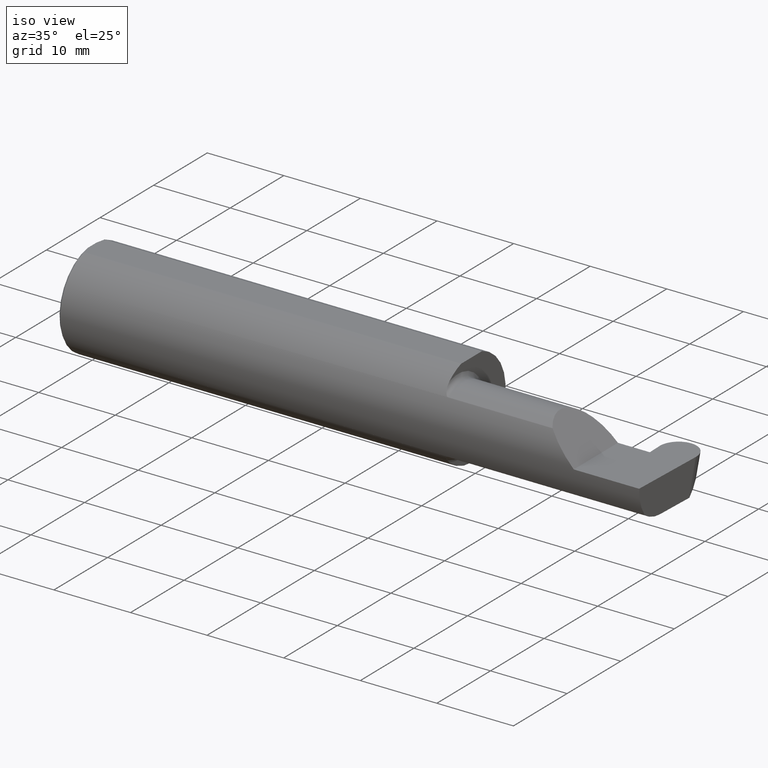
[diagram: clean part render]
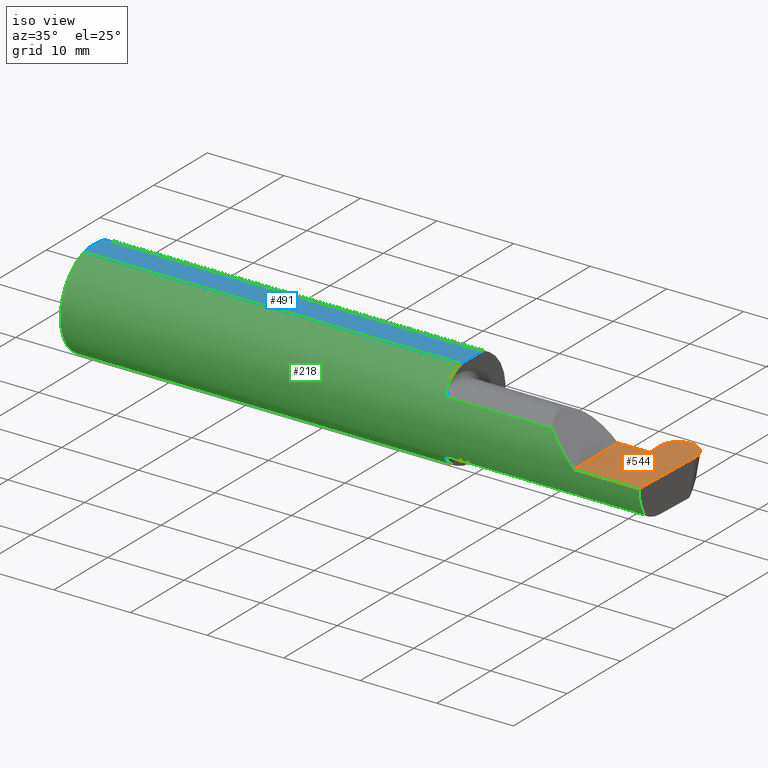
[diagram: same view with three faces highlighted in distinct colors, each labeled with its STEP entity id]
A machine part, iso view with three faces highlighted in distinct colors.
Their STEP definitions:

[orange] entity #544 — the highlighted planar face has unit normal (-0, 0, -1).
#2 = CARTESIAN_POINT ( 'NONE',  ( 2.809800481473789358, 0.2053034494642216323, 2.322929703798115353E-17 ) ) ;
#13 = CARTESIAN_POINT ( 'NONE',  ( 2.848790630771113275, 0.2471500000000001751, 1.845438088445658575E-17 ) ) ;
#19 = VERTEX_POINT ( 'NONE', #341 ) ;
#20 = VECTOR ( 'NONE', #590, 39.37007874015748143 ) ;
#21 = PLANE ( 'NONE',  #339 ) ;
#28 = VERTEX_POINT ( 'NONE', #234 ) ;
#31 = VERTEX_POINT ( 'NONE', #507 ) ;
#44 = EDGE_CURVE ( 'NONE', #155, #28, #186, .T. ) ;
#58 = CARTESIAN_POINT ( 'NONE',  ( 2.906528048425327526, 0.2471499999999999808, 0.000000000000000000 ) ) ;
#60 = CARTESIAN_POINT ( 'NONE',  ( 2.803339167728504666, 0.07414999999999977165, 0.000000000000000000 ) ) ;
#63 = LINE ( 'NONE', #177, #241 ) ;
#65 = EDGE_CURVE ( 'NONE', #253, #423, #337, .T. ) ;
#83 = CARTESIAN_POINT ( 'NONE',  ( 2.814380460850576249, 0.07414999999999977165, 0.000000000000000000 ) ) ;
#88 = CARTESIAN_POINT ( 'NONE',  ( 4.499279347985562423E-32, -0.2498499999999999610, 3.673940397442054938E-16 ) ) ;
#95 = LINE ( 'NONE', #88, #20 ) ;
#104 = EDGE_CURVE ( 'NONE', #452, #19, #63, .T. ) ;
#111 = CARTESIAN_POINT ( 'NONE',  ( 2.962893989228886138, 0.2471500000000001196, -6.982753567311735255E-18 ) ) ;
#118 = ORIENTED_EDGE ( 'NONE', *, *, #65, .F. ) ;
#122 = DIRECTION ( 'NONE',  ( 1.000000000000000000, 1.981473217010842137E-17, 0.000000000000000000 ) ) ;
#137 = DIRECTION ( 'NONE',  ( -1.224646799147351975E-16, 0.000000000000000000, -1.000000000000000000 ) ) ;
#155 = VERTEX_POINT ( 'NONE', #459 ) ;
#174 = ORIENTED_EDGE ( 'NONE', *, *, #367, .T. ) ;
#176 = CARTESIAN_POINT ( 'NONE',  ( 3.001884138526210499, 0.2053034494642216323, -1.175766972083629841E-17 ) ) ;
#177 = CARTESIAN_POINT ( 'NONE',  ( 2.999942641679308242, 0.1497062540083303195, 0.000000000000000000 ) ) ;
#185 =( BOUNDED_CURVE ( )  B_SPLINE_CURVE ( 3, ( #282, #13, #2, #541 ),
 .UNSPECIFIED., .F., .T. ) 
 B_SPLINE_CURVE_WITH_KNOTS ( ( 4, 4 ),
 ( 3.045231736429744540, 4.645220385064936508 ),
 .UNSPECIFIED. ) 
 CURVE ( )  GEOMETRIC_REPRESENTATION_ITEM ( )  RATIONAL_B_SPLINE_CURVE ( ( 1.000000000000000000, 0.7978071872141907495, 0.7978071872141907495, 1.000000000000000000 ) ) 
 REPRESENTATION_ITEM ( '' )  );
#186 = LINE ( 'NONE', #509, #288 ) ;
#187 = EDGE_LOOP ( 'NONE', ( #653, #174, #201, #203, #118, #589, #244, #480, #495 ) ) ;
#192 = VERTEX_POINT ( 'NONE', #83 ) ;
#201 = ORIENTED_EDGE ( 'NONE', *, *, #517, .F. ) ;
#203 = ORIENTED_EDGE ( 'NONE', *, *, #391, .F. ) ;
#207 = VECTOR ( 'NONE', #330, 39.37007874015748143 ) ;
#221 = CARTESIAN_POINT ( 'NONE',  ( 2.814380460850576249, 0.07414999999999977165, 0.000000000000000000 ) ) ;
#234 = CARTESIAN_POINT ( 'NONE',  ( 2.906528048425327526, 0.2471499999999999808, 0.000000000000000000 ) ) ;
#241 = VECTOR ( 'NONE', #287, 39.37007874015748143 ) ;
#244 = ORIENTED_EDGE ( 'NONE', *, *, #599, .F. ) ;
#251 = CARTESIAN_POINT ( 'NONE',  ( 2.811741978320692059, 0.1497062540083303195, 0.000000000000000000 ) ) ;
#253 = VERTEX_POINT ( 'NONE', #443 ) ;
#263 =( BOUNDED_CURVE ( )  B_SPLINE_CURVE ( 3, ( #603, #176, #111, #58 ),
 .UNSPECIFIED., .F., .T. ) 
 B_SPLINE_CURVE_WITH_KNOTS ( ( 4, 4 ),
 ( 1.637964922114649946, 3.237953570749842580 ),
 .UNSPECIFIED. ) 
 CURVE ( )  GEOMETRIC_REPRESENTATION_ITEM ( )  RATIONAL_B_SPLINE_CURVE ( ( 1.000000000000000000, 0.7978071872141906384, 0.7978071872141906384, 1.000000000000000000 ) ) 
 REPRESENTATION_ITEM ( '' )  );
#282 = CARTESIAN_POINT ( 'NONE',  ( 2.905156571574672331, 0.2471499999999999808, 0.000000000000000000 ) ) ;
#287 = DIRECTION ( 'NONE',  ( -0.03489949670249513358, -0.9993908270190959842, 0.000000000000000000 ) ) ;
#288 = VECTOR ( 'NONE', #448, 39.37007874015748143 ) ;
#301 = VERTEX_POINT ( 'NONE', #493 ) ;
#329 = VECTOR ( 'NONE', #660, 39.37007874015748143 ) ;
#330 = DIRECTION ( 'NONE',  ( 1.000000000000000000, -0.000000000000000000, -0.000000000000000000 ) ) ;
#337 = LINE ( 'NONE', #556, #404 ) ;
#339 = AXIS2_PLACEMENT_3D ( 'NONE', #401, #137, #572 ) ;
#341 = CARTESIAN_POINT ( 'NONE',  ( 2.985989829834099218, -0.2498499999999999888, 0.000000000000000000 ) ) ;
#361 = EDGE_CURVE ( 'NONE', #301, #253, #652, .T. ) ;
#367 = EDGE_CURVE ( 'NONE', #155, #31, #185, .T. ) ;
#386 = LINE ( 'NONE', #221, #207 ) ;
#387 = EDGE_CURVE ( 'NONE', #452, #28, #263, .T. ) ;
#391 = EDGE_CURVE ( 'NONE', #423, #192, #386, .T. ) ;
#394 = DIRECTION ( 'NONE',  ( -0.03489949670249350294, 0.9993908270190959842, -0.000000000000000000 ) ) ;
#397 = LINE ( 'NONE', #251, #667 ) ;
#401 = CARTESIAN_POINT ( 'NONE',  ( 3.000000000000000444, -0.2500000000000000555, 0.000000000000000000 ) ) ;
#404 = VECTOR ( 'NONE', #122, 39.37007874015748143 ) ;
#423 = VERTEX_POINT ( 'NONE', #60 ) ;
#443 = CARTESIAN_POINT ( 'NONE',  ( 2.650000000000000355, 0.07414999999999999369, 1.285879139104719253E-16 ) ) ;
#448 = DIRECTION ( 'NONE',  ( 1.000000000000000000, -0.000000000000000000, -0.000000000000000000 ) ) ;
#452 = VERTEX_POINT ( 'NONE', #514 ) ;
#459 = CARTESIAN_POINT ( 'NONE',  ( 2.905156571574672331, 0.2471499999999999808, 0.000000000000000000 ) ) ;
#480 = ORIENTED_EDGE ( 'NONE', *, *, #104, .F. ) ;
#493 = CARTESIAN_POINT ( 'NONE',  ( 2.650000000000000355, -0.2498499999999999610, 4.286263797015729199E-17 ) ) ;
#495 = ORIENTED_EDGE ( 'NONE', *, *, #387, .T. ) ;
#506 = CARTESIAN_POINT ( 'NONE',  ( 2.650000000000000355, -0.2500000000000000555, 4.286263797015729199E-17 ) ) ;
#507 = CARTESIAN_POINT ( 'NONE',  ( 2.811836707554793424, 0.1469935636673020407, 0.000000000000000000 ) ) ;
#509 = CARTESIAN_POINT ( 'NONE',  ( -0.002039370078740339320, 0.2471499999999999808, 0.000000000000000000 ) ) ;
#511 = FACE_OUTER_BOUND ( 'NONE', #187, .T. ) ;
#514 = CARTESIAN_POINT ( 'NONE',  ( 2.999847912445206877, 0.1469935636673019019, 0.000000000000000000 ) ) ;
#517 = EDGE_CURVE ( 'NONE', #192, #31, #397, .T. ) ;
#541 = CARTESIAN_POINT ( 'NONE',  ( 2.811836707554793424, 0.1469935636673020407, 0.000000000000000000 ) ) ;
#544 = ADVANCED_FACE ( 'NONE', ( #511 ), #21, .F. ) ;
#556 = CARTESIAN_POINT ( 'NONE',  ( 1.950000000000000178, 0.07414999999999997982, 1.285879139104719253E-16 ) ) ;
#572 = DIRECTION ( 'NONE',  ( -1.000000000000000000, 0.000000000000000000, 1.224646799147351975E-16 ) ) ;
#589 = ORIENTED_EDGE ( 'NONE', *, *, #361, .F. ) ;
#590 = DIRECTION ( 'NONE',  ( -1.000000000000000000, -0.000000000000000000, -0.000000000000000000 ) ) ;
#599 = EDGE_CURVE ( 'NONE', #19, #301, #95, .T. ) ;
#603 = CARTESIAN_POINT ( 'NONE',  ( 2.999847912445206877, 0.1469935636673019019, 0.000000000000000000 ) ) ;
#652 = LINE ( 'NONE', #506, #329 ) ;
#653 = ORIENTED_EDGE ( 'NONE', *, *, #44, .F. ) ;
#660 = DIRECTION ( 'NONE',  ( -0.000000000000000000, 1.000000000000000000, -0.000000000000000000 ) ) ;
#667 = VECTOR ( 'NONE', #394, 39.37007874015748854 ) ;

[blue] entity #491 — the highlighted planar face has unit normal (0, 0, 1).
#5 = CARTESIAN_POINT ( 'NONE',  ( 0.000000000000000000, -0.07650098038587520299, 0.2378499999999998671 ) ) ;
#23 = DIRECTION ( 'NONE',  ( 1.000000000000000000, 0.000000000000000000, -0.000000000000000000 ) ) ;
#26 = PLANE ( 'NONE',  #147 ) ;
#50 = EDGE_CURVE ( 'NONE', #406, #628, #445, .T. ) ;
#115 = DIRECTION ( 'NONE',  ( -1.981473217010842137E-17, 1.000000000000000000, 0.000000000000000000 ) ) ;
#117 = CARTESIAN_POINT ( 'NONE',  ( 0.000000000000000000, 0.2498499999999998500, 0.2378499999999998671 ) ) ;
#140 = CARTESIAN_POINT ( 'NONE',  ( 0.002005502345409059580, 0.04647171987093979412, 0.2378499999999998671 ) ) ;
#147 = AXIS2_PLACEMENT_3D ( 'NONE', #562, #569, #23 ) ;
#151 = ORIENTED_EDGE ( 'NONE', *, *, #199, .F. ) ;
#162 = EDGE_CURVE ( 'NONE', #378, #485, #343, .T. ) ;
#195 = VECTOR ( 'NONE', #228, 39.37007874015748143 ) ;
#199 = EDGE_CURVE ( 'NONE', #406, #650, #601, .T. ) ;
#200 = CARTESIAN_POINT ( 'NONE',  ( 0.000000000000000000, 0.03090954545120574992, 0.2378499999999998671 ) ) ;
#206 = ORIENTED_EDGE ( 'NONE', *, *, #50, .T. ) ;
#228 = DIRECTION ( 'NONE',  ( -1.000000000000000000, -0.000000000000000000, -0.000000000000000000 ) ) ;
#232 = CARTESIAN_POINT ( 'NONE',  ( 0.000000000000000000, -0.03090954545120560767, 0.2378499999999998671 ) ) ;
#259 = CARTESIAN_POINT ( 'NONE',  ( 0.000000000000000000, -0.03090954545120560767, 0.2378499999999998671 ) ) ;
#272 = CARTESIAN_POINT ( 'NONE',  ( 0.001983148254845701515, -0.04629825796642599717, 0.2378499999999998671 ) ) ;
#280 = EDGE_CURVE ( 'NONE', #373, #485, #496, .T. ) ;
#284 = LINE ( 'NONE', #379, #308 ) ;
#308 = VECTOR ( 'NONE', #115, 39.37007874015748143 ) ;
#318 = VECTOR ( 'NONE', #438, 39.37007874015748143 ) ;
#333 = CARTESIAN_POINT ( 'NONE',  ( 0.000000000000000000, 0.07650098038587520299, 0.2378499999999998671 ) ) ;
#342 = FACE_OUTER_BOUND ( 'NONE', #460, .T. ) ;
#343 = B_SPLINE_CURVE_WITH_KNOTS ( 'NONE', 3,
 ( #200, #140, #371, #579 ),
 .UNSPECIFIED., .F., .F.,
 ( 4, 4 ),
 ( 0.01593449416844770414, 0.01712021724825603733 ),
 .UNSPECIFIED. ) ;
#345 = EDGE_CURVE ( 'NONE', #650, #378, #609, .T. ) ;
#358 = CARTESIAN_POINT ( 'NONE',  ( 0.005459900170181723050, -0.06167314502012866823, 0.2378499999999998671 ) ) ;
#360 = ORIENTED_EDGE ( 'NONE', *, *, #280, .T. ) ;
#371 = CARTESIAN_POINT ( 'NONE',  ( 0.005466242398876384675, 0.06169385855649840017, 0.2378499999999998671 ) ) ;
#373 = VERTEX_POINT ( 'NONE', #374 ) ;
#374 = CARTESIAN_POINT ( 'NONE',  ( 1.950000000000000178, 0.07650098038587520299, 0.2378499999999998671 ) ) ;
#377 = DIRECTION ( 'NONE',  ( -0.000000000000000000, 1.000000000000000000, -0.000000000000000000 ) ) ;
#378 = VERTEX_POINT ( 'NONE', #429 ) ;
#379 = CARTESIAN_POINT ( 'NONE',  ( 1.950000000000000178, 0.2498499999999998222, 0.2378499999999998671 ) ) ;
#402 = CARTESIAN_POINT ( 'NONE',  ( 0.009999999999999856226, -0.07650098038587520299, 0.2378499999999998671 ) ) ;
#406 = VERTEX_POINT ( 'NONE', #547 ) ;
#429 = CARTESIAN_POINT ( 'NONE',  ( 0.000000000000000000, 0.03090954545120574992, 0.2378499999999998671 ) ) ;
#438 = DIRECTION ( 'NONE',  ( 1.000000000000000000, 0.000000000000000000, 0.000000000000000000 ) ) ;
#445 = LINE ( 'NONE', #5, #318 ) ;
#460 = EDGE_LOOP ( 'NONE', ( #206, #674, #360, #600, #613, #151 ) ) ;
#485 = VERTEX_POINT ( 'NONE', #513 ) ;
#491 = ADVANCED_FACE ( 'NONE', ( #342 ), #26, .T. ) ;
#496 = LINE ( 'NONE', #333, #195 ) ;
#513 = CARTESIAN_POINT ( 'NONE',  ( 0.009999999999999856226, 0.07650098038587520299, 0.2378499999999998671 ) ) ;
#547 = CARTESIAN_POINT ( 'NONE',  ( 0.009999999999999856226, -0.07650098038587520299, 0.2378499999999998671 ) ) ;
#558 = VECTOR ( 'NONE', #377, 39.37007874015748143 ) ;
#562 = CARTESIAN_POINT ( 'NONE',  ( 3.501298404146671484, 0.2498499999999998500, 0.2378499999999998671 ) ) ;
#569 = DIRECTION ( 'NONE',  ( 0.000000000000000000, 0.000000000000000000, 1.000000000000000000 ) ) ;
#579 = CARTESIAN_POINT ( 'NONE',  ( 0.009999999999999856226, 0.07650098038587520299, 0.2378499999999998671 ) ) ;
#600 = ORIENTED_EDGE ( 'NONE', *, *, #162, .F. ) ;
#601 = B_SPLINE_CURVE_WITH_KNOTS ( 'NONE', 3,
 ( #402, #358, #272, #259 ),
 .UNSPECIFIED., .F., .F.,
 ( 4, 4 ),
 ( 0.01317593029100230795, 0.01435802289191462008 ),
 .UNSPECIFIED. ) ;
#609 = LINE ( 'NONE', #117, #558 ) ;
#613 = ORIENTED_EDGE ( 'NONE', *, *, #345, .F. ) ;
#628 = VERTEX_POINT ( 'NONE', #685 ) ;
#650 = VERTEX_POINT ( 'NONE', #232 ) ;
#674 = ORIENTED_EDGE ( 'NONE', *, *, #690, .T. ) ;
#685 = CARTESIAN_POINT ( 'NONE',  ( 1.950000000000000178, -0.07650098038587523075, 0.2378499999999998671 ) ) ;
#690 = EDGE_CURVE ( 'NONE', #628, #373, #284, .T. ) ;

[green] entity #218 — the highlighted cylindrical surface (partial cylindrical patch) has radius 6.3462 mm, axis along (-1, -0, -0).
#5 = CARTESIAN_POINT ( 'NONE',  ( 0.000000000000000000, -0.07650098038587520299, 0.2378499999999998671 ) ) ;
#15 = CARTESIAN_POINT ( 'NONE',  ( 1.975000000000000089, -0.2080850024789290820, -0.1382955322609666915 ) ) ;
#18 = CARTESIAN_POINT ( 'NONE',  ( 1.950000000000000178, -0.1716188362992555061, -0.1820560320165479362 ) ) ;
#19 = VERTEX_POINT ( 'NONE', #341 ) ;
#20 = VECTOR ( 'NONE', #590, 39.37007874015748143 ) ;
#22 = CARTESIAN_POINT ( 'NONE',  ( 1.956147634408388347, -0.1932733126899460474, -0.1584637047788197695 ) ) ;
#27 = CARTESIAN_POINT ( 'NONE',  ( 1.950000000000000178, -0.1616050818046604609, -0.1905487340154979614 ) ) ;
#29 = DIRECTION ( 'NONE',  ( 0.000000000000000000, 1.000000000000000000, 0.000000000000000000 ) ) ;
#30 = CYLINDRICAL_SURFACE ( 'NONE', #169, 0.2498499999999999888 ) ;
#39 = CARTESIAN_POINT ( 'NONE',  ( 1.950367168219774294, -0.1713400252854603845, 0.1819601557798505298 ) ) ;
#45 = CARTESIAN_POINT ( 'NONE',  ( 1.952968662030529323, -0.1849684355203378983, 0.1680843977756267538 ) ) ;
#48 = CARTESIAN_POINT ( 'NONE',  ( 2.984795792828450089, -0.2355204011147991883, -0.09701513151466764628 ) ) ;
#50 = EDGE_CURVE ( 'NONE', #406, #628, #445, .T. ) ;
#52 = ORIENTED_EDGE ( 'NONE', *, *, #599, .T. ) ;
#80 = CARTESIAN_POINT ( 'NONE',  ( 2.985032866776429650, -0.2080850024789289987, -0.1382955322609668025 ) ) ;
#81 = ORIENTED_EDGE ( 'NONE', *, *, #242, .F. ) ;
#84 = ORIENTED_EDGE ( 'NONE', *, *, #141, .F. ) ;
#87 = AXIS2_PLACEMENT_3D ( 'NONE', #352, #682, #29 ) ;
#88 = CARTESIAN_POINT ( 'NONE',  ( 4.499279347985562423E-32, -0.2498499999999999610, 3.673940397442054938E-16 ) ) ;
#95 = LINE ( 'NONE', #88, #20 ) ;
#103 = DIRECTION ( 'NONE',  ( 0.000000000000000000, 0.000000000000000000, 1.000000000000000000 ) ) ;
#105 = ORIENTED_EDGE ( 'NONE', *, *, #494, .F. ) ;
#107 = ORIENTED_EDGE ( 'NONE', *, *, #50, .F. ) ;
#109 =( BOUNDED_CURVE ( )  B_SPLINE_CURVE ( 3, ( #80, #48, #405, #678 ),
 .UNSPECIFIED., .F., .T. ) 
 B_SPLINE_CURVE_WITH_KNOTS ( ( 4, 4 ),
 ( 6.160376845738953833, 6.746954780470612256 ),
 .UNSPECIFIED. ) 
 CURVE ( )  GEOMETRIC_REPRESENTATION_ITEM ( )  RATIONAL_B_SPLINE_CURVE ( ( 1.000000000000000000, 0.9715321379117538569, 0.9715321379117538569, 1.000000000000000000 ) ) 
 REPRESENTATION_ITEM ( '' )  );
#110 = EDGE_CURVE ( 'NONE', #427, #227, #702, .T. ) ;
#128 = CARTESIAN_POINT ( 'NONE',  ( 1.962579853086619197, -0.2024300470081734915, -0.1464774911482684683 ) ) ;
#130 = DIRECTION ( 'NONE',  ( 0.000000000000000000, 0.000000000000000000, -1.000000000000000000 ) ) ;
#138 = DIRECTION ( 'NONE',  ( 1.000000000000000000, 1.981473217010842137E-17, 0.000000000000000000 ) ) ;
#139 = ORIENTED_EDGE ( 'NONE', *, *, #585, .F. ) ;
#141 = EDGE_CURVE ( 'NONE', #265, #687, #355, .T. ) ;
#154 = CARTESIAN_POINT ( 'NONE',  ( 1.950000000000000178, -0.1616050818046604609, 0.1905487340154979614 ) ) ;
#167 = CARTESIAN_POINT ( 'NONE',  ( 2.600434159100402987, -0.2498499999999999610, 0.04956584089959713973 ) ) ;
#169 = AXIS2_PLACEMENT_3D ( 'NONE', #595, #202, #103 ) ;
#170 = ORIENTED_EDGE ( 'NONE', *, *, #280, .F. ) ;
#179 = AXIS2_PLACEMENT_3D ( 'NONE', #655, #659, #385 ) ;
#189 = EDGE_CURVE ( 'NONE', #363, #19, #109, .T. ) ;
#191 = CARTESIAN_POINT ( 'NONE',  ( 1.950000000000000178, -0.1616050818046604609, -0.1905487340154979614 ) ) ;
#195 = VECTOR ( 'NONE', #228, 39.37007874015748143 ) ;
#202 = DIRECTION ( 'NONE',  ( -1.000000000000000000, -0.000000000000000000, -0.000000000000000000 ) ) ;
#212 = CARTESIAN_POINT ( 'NONE',  ( 1.975000000000000089, -0.2080850024789290820, 0.1382955322609667193 ) ) ;
#214 = CARTESIAN_POINT ( 'NONE',  ( 2.650000000000000355, -0.2498499999999999610, 4.286263797015729199E-17 ) ) ;
#218 = ADVANCED_FACE ( 'NONE', ( #686 ), #30, .T. ) ;
#225 = LINE ( 'NONE', #432, #529 ) ;
#227 = VERTEX_POINT ( 'NONE', #27 ) ;
#228 = DIRECTION ( 'NONE',  ( -1.000000000000000000, -0.000000000000000000, -0.000000000000000000 ) ) ;
#239 = CARTESIAN_POINT ( 'NONE',  ( 1.973318040126429418, -0.2080850024789289987, -0.1382955322609667748 ) ) ;
#242 = EDGE_CURVE ( 'NONE', #227, #373, #359, .T. ) ;
#252 = CARTESIAN_POINT ( 'NONE',  ( 2.393342309999999973, -0.2080850024789289987, 0.1382955322609668025 ) ) ;
#265 = VERTEX_POINT ( 'NONE', #279 ) ;
#267 = CARTESIAN_POINT ( 'NONE',  ( 1.967647060162629025, -0.2062109266231181848, 0.1410799729252291135 ) ) ;
#269 = CARTESIAN_POINT ( 'NONE',  ( 1.951849548162864156, -0.1805300287242674884, 0.1728462070311779786 ) ) ;
#274 = CARTESIAN_POINT ( 'NONE',  ( 2.552984868485331571, -0.2355204011147991605, 0.09701513151466779894 ) ) ;
#275 = AXIS2_PLACEMENT_3D ( 'NONE', #350, #458, #130 ) ;
#277 = ORIENTED_EDGE ( 'NONE', *, *, #431, .F. ) ;
#279 = CARTESIAN_POINT ( 'NONE',  ( 1.975000000000000089, -0.2080850024789290820, 0.1382955322609667193 ) ) ;
#280 = EDGE_CURVE ( 'NONE', #373, #485, #496, .T. ) ;
#285 = CARTESIAN_POINT ( 'NONE',  ( 1.975000000000000089, -0.2080850024789290820, -0.1382955322609666915 ) ) ;
#290 = CARTESIAN_POINT ( 'NONE',  ( 2.985032866776429650, -0.2080850024789289987, -0.1382955322609668025 ) ) ;
#291 = CARTESIAN_POINT ( 'NONE',  ( 1.971700027347579764, -0.2077785947292768165, -0.1387580622202825853 ) ) ;
#301 = VERTEX_POINT ( 'NONE', #493 ) ;
#318 = VECTOR ( 'NONE', #438, 39.37007874015748143 ) ;
#322 = DIRECTION ( 'NONE',  ( 1.000000000000000000, 1.981473217010842137E-17, 0.000000000000000000 ) ) ;
#333 = CARTESIAN_POINT ( 'NONE',  ( 0.000000000000000000, 0.07650098038587520299, 0.2378499999999998671 ) ) ;
#338 = CARTESIAN_POINT ( 'NONE',  ( 2.511704467739031887, -0.2080850024789288877, 0.1382955322609669413 ) ) ;
#341 = CARTESIAN_POINT ( 'NONE',  ( 2.985989829834099218, -0.2498499999999999888, 0.000000000000000000 ) ) ;
#344 = CARTESIAN_POINT ( 'NONE',  ( 1.958176740666625948, -0.1972027065478073882, -0.1535263573771913914 ) ) ;
#348 = CARTESIAN_POINT ( 'NONE',  ( 1.964302603425052585, -0.2041009206016213273, -0.1441313430770039539 ) ) ;
#350 = CARTESIAN_POINT ( 'NONE',  ( 0.009999999999999856226, 0.000000000000000000, 0.000000000000000000 ) ) ;
#352 = CARTESIAN_POINT ( 'NONE',  ( 1.950000000000000178, 0.000000000000000000, 0.000000000000000000 ) ) ;
#355 = LINE ( 'NONE', #252, #415 ) ;
#359 = CIRCLE ( 'NONE', #633, 0.2498499999999999888 ) ;
#362 = CARTESIAN_POINT ( 'NONE',  ( 1.958182335268384255, -0.1972192205116130859, 0.1535061413537209263 ) ) ;
#363 = VERTEX_POINT ( 'NONE', #290 ) ;
#364 = CARTESIAN_POINT ( 'NONE',  ( 1.964343523383979884, -0.2041337200786084161, 0.1440846171672513221 ) ) ;
#366 = CARTESIAN_POINT ( 'NONE',  ( 1.962616400345755574, -0.2024684335577103256, 0.1464246884265637538 ) ) ;
#373 = VERTEX_POINT ( 'NONE', #374 ) ;
#374 = CARTESIAN_POINT ( 'NONE',  ( 1.950000000000000178, 0.07650098038587520299, 0.2378499999999998671 ) ) ;
#385 = DIRECTION ( 'NONE',  ( 0.000000000000000000, 0.000000000000000000, -1.000000000000000000 ) ) ;
#392 = CARTESIAN_POINT ( 'NONE',  ( 1.968863362722770738, -0.2068301641248770084, -0.1401678546132360537 ) ) ;
#405 = CARTESIAN_POINT ( 'NONE',  ( 2.985124127500504265, -0.2498499999999999610, -0.04956584089959700790 ) ) ;
#406 = VERTEX_POINT ( 'NONE', #547 ) ;
#415 = VECTOR ( 'NONE', #138, 39.37007874015748143 ) ;
#427 = VERTEX_POINT ( 'NONE', #285 ) ;
#431 = EDGE_CURVE ( 'NONE', #363, #427, #225, .T. ) ;
#432 = CARTESIAN_POINT ( 'NONE',  ( 2.393342309999999973, -0.2080850024789289987, -0.1382955322609668025 ) ) ;
#434 = CIRCLE ( 'NONE', #87, 0.2498499999999999888 ) ;
#438 = DIRECTION ( 'NONE',  ( 1.000000000000000000, 0.000000000000000000, 0.000000000000000000 ) ) ;
#445 = LINE ( 'NONE', #5, #318 ) ;
#456 = CARTESIAN_POINT ( 'NONE',  ( 1.951385488563269766, -0.1808287530430326140, -0.1728790649396285961 ) ) ;
#458 = DIRECTION ( 'NONE',  ( 1.000000000000000000, 0.000000000000000000, 0.000000000000000000 ) ) ;
#473 = CARTESIAN_POINT ( 'NONE',  ( 1.950000000000000844, -0.1665641037263010660, 0.1863429692936361404 ) ) ;
#481 = CARTESIAN_POINT ( 'NONE',  ( 1.950000000000000178, -0.1616050818046604609, 0.1905487340154979614 ) ) ;
#485 = VERTEX_POINT ( 'NONE', #513 ) ;
#493 = CARTESIAN_POINT ( 'NONE',  ( 2.650000000000000355, -0.2498499999999999610, 4.286263797015729199E-17 ) ) ;
#494 = EDGE_CURVE ( 'NONE', #628, #604, #434, .T. ) ;
#496 = LINE ( 'NONE', #333, #195 ) ;
#499 = ORIENTED_EDGE ( 'NONE', *, *, #189, .T. ) ;
#502 = DIRECTION ( 'NONE',  ( -1.000000000000000000, -1.981473217010842137E-17, -0.000000000000000000 ) ) ;
#513 = CARTESIAN_POINT ( 'NONE',  ( 0.009999999999999856226, 0.07650098038587520299, 0.2378499999999998671 ) ) ;
#527 = ORIENTED_EDGE ( 'NONE', *, *, #676, .T. ) ;
#529 = VECTOR ( 'NONE', #502, 39.37007874015748143 ) ;
#534 = CARTESIAN_POINT ( 'NONE',  ( 1.968876997637614812, -0.2068363917296600907, 0.1401586554522230021 ) ) ;
#535 = DIRECTION ( 'NONE',  ( 0.000000000000000000, 1.000000000000000000, 0.000000000000000000 ) ) ;
#540 = EDGE_CURVE ( 'NONE', #406, #592, #605, .T. ) ;
#547 = CARTESIAN_POINT ( 'NONE',  ( 0.009999999999999856226, -0.07650098038587520299, 0.2378499999999998671 ) ) ;
#581 = CARTESIAN_POINT ( 'NONE',  ( 0.009999999999999856226, 0.000000000000000000, -0.2498499999999999888 ) ) ;
#585 = EDGE_CURVE ( 'NONE', #604, #265, #586, .T. ) ;
#586 = B_SPLINE_CURVE_WITH_KNOTS ( 'NONE', 3,
 ( #154, #473, #39, #269, #45, #688, #362, #366, #364, #267, #534, #640, #700, #212 ),
 .UNSPECIFIED., .F., .F.,
 ( 4, 2, 2, 2, 2, 2, 4 ),
 ( 0.0003834465838148167632, 0.0008781406165086617401, 0.001372834649202506717, 0.001867528681896351694, 0.002114875698243278302, 0.002238549206416748545, 0.002362222714590218355 ),
 .UNSPECIFIED. ) ;
#590 = DIRECTION ( 'NONE',  ( -1.000000000000000000, -0.000000000000000000, -0.000000000000000000 ) ) ;
#592 = VERTEX_POINT ( 'NONE', #581 ) ;
#595 = CARTESIAN_POINT ( 'NONE',  ( 0.000000000000000000, 0.000000000000000000, 0.000000000000000000 ) ) ;
#599 = EDGE_CURVE ( 'NONE', #19, #301, #95, .T. ) ;
#604 = VERTEX_POINT ( 'NONE', #481 ) ;
#605 = CIRCLE ( 'NONE', #275, 0.2498499999999999888 ) ;
#608 = ORIENTED_EDGE ( 'NONE', *, *, #669, .T. ) ;
#615 = CIRCLE ( 'NONE', #179, 0.2498499999999999888 ) ;
#616 = CARTESIAN_POINT ( 'NONE',  ( 1.967611663768900732, -0.2061921161193830676, -0.1411075319999377242 ) ) ;
#626 = ORIENTED_EDGE ( 'NONE', *, *, #110, .F. ) ;
#628 = VERTEX_POINT ( 'NONE', #685 ) ;
#633 = AXIS2_PLACEMENT_3D ( 'NONE', #689, #322, #535 ) ;
#639 = ORIENTED_EDGE ( 'NONE', *, *, #540, .T. ) ;
#640 = CARTESIAN_POINT ( 'NONE',  ( 1.971718393013769388, -0.2077830475237241181, 0.1387513848711937336 ) ) ;
#651 = CARTESIAN_POINT ( 'NONE',  ( 2.511704467739031887, -0.2080850024789288877, 0.1382955322609669413 ) ) ;
#655 = CARTESIAN_POINT ( 'NONE',  ( 0.009999999999999856226, 0.000000000000000000, 0.000000000000000000 ) ) ;
#659 = DIRECTION ( 'NONE',  ( 1.000000000000000000, 0.000000000000000000, 0.000000000000000000 ) ) ;
#662 = EDGE_LOOP ( 'NONE', ( #277, #499, #52, #527, #84, #139, #105, #107, #639, #608, #170, #81, #626 ) ) ;
#669 = EDGE_CURVE ( 'NONE', #592, #485, #615, .T. ) ;
#672 =( BOUNDED_CURVE ( )  B_SPLINE_CURVE ( 3, ( #214, #167, #274, #651 ),
 .UNSPECIFIED., .F., .T. ) 
 B_SPLINE_CURVE_WITH_KNOTS ( ( 4, 4 ),
 ( 4.712388980384689674, 5.298966915116348986 ),
 .UNSPECIFIED. ) 
 CURVE ( )  GEOMETRIC_REPRESENTATION_ITEM ( )  RATIONAL_B_SPLINE_CURVE ( ( 1.000000000000000000, 0.9715321379117536349, 0.9715321379117536349, 1.000000000000000000 ) ) 
 REPRESENTATION_ITEM ( '' )  );
#676 = EDGE_CURVE ( 'NONE', #301, #687, #672, .T. ) ;
#678 = CARTESIAN_POINT ( 'NONE',  ( 2.985989829834099218, -0.2498499999999999888, 0.000000000000000000 ) ) ;
#682 = DIRECTION ( 'NONE',  ( 1.000000000000000000, 1.981473217010842137E-17, 0.000000000000000000 ) ) ;
#685 = CARTESIAN_POINT ( 'NONE',  ( 1.950000000000000178, -0.07650098038587523075, 0.2378499999999998671 ) ) ;
#686 = FACE_OUTER_BOUND ( 'NONE', #662, .T. ) ;
#687 = VERTEX_POINT ( 'NONE', #338 ) ;
#688 = CARTESIAN_POINT ( 'NONE',  ( 1.956159563508734323, -0.1933019864360849549, 0.1584298865564831016 ) ) ;
#689 = CARTESIAN_POINT ( 'NONE',  ( 1.950000000000000178, 0.000000000000000000, 0.000000000000000000 ) ) ;
#700 = CARTESIAN_POINT ( 'NONE',  ( 1.973329956043143651, -0.2080850024798590603, 0.1382955322595675884 ) ) ;
#702 = B_SPLINE_CURVE_WITH_KNOTS ( 'NONE', 3,
 ( #15, #239, #291, #392, #616, #348, #128, #344, #22, #456, #18, #191 ),
 .UNSPECIFIED., .F., .F.,
 ( 4, 2, 2, 2, 2, 4 ),
 ( 1.964491429041408350E-07, 0.0001260981470478415932, 0.0002519998449527790065, 0.0005038032407626401180, 0.001007410032382360498, 0.002014623615621811015 ),
 .UNSPECIFIED. ) ;